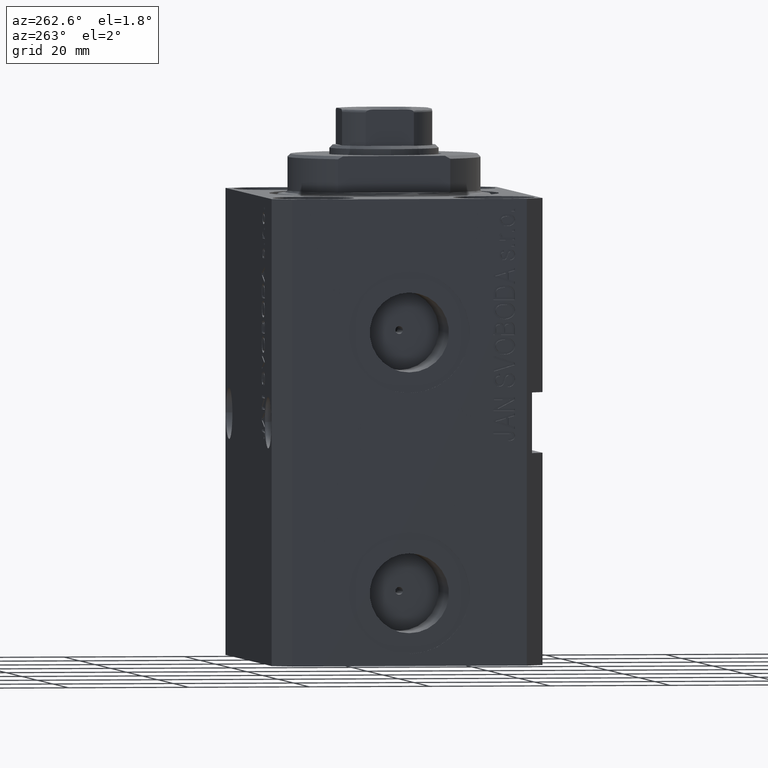
[diagram: clean part render]
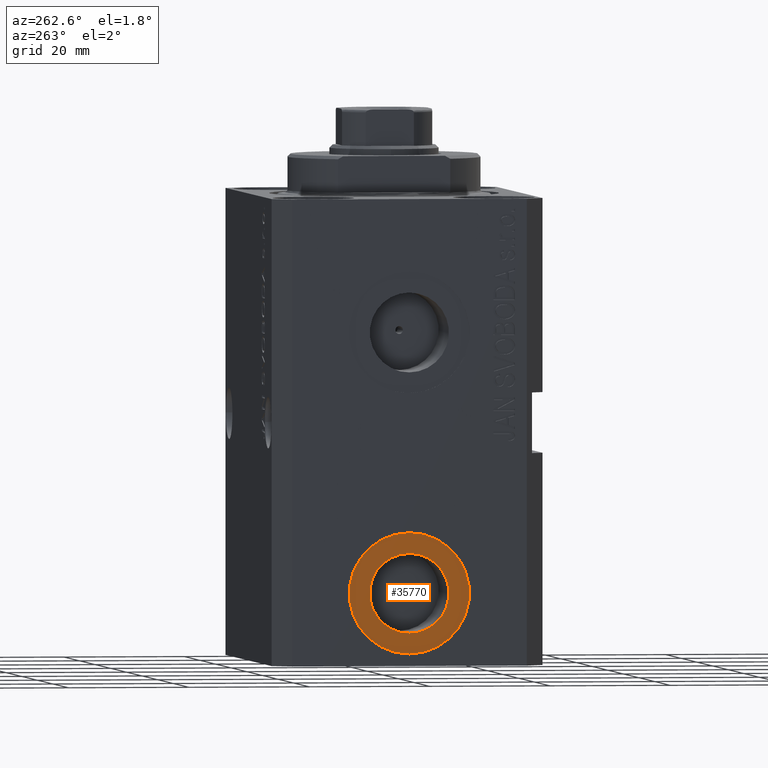
[diagram: same view with one face highlighted and labeled with its STEP entity id]
A machine part, auxiliary view. The second image highlights one B-rep face of the part: STEP entity #35770.
In plain terms, the highlighted planar face has unit normal (-1, 0, 0).
Its self-contained STEP definition (entity closure, byte-faithful):
#1236 = DIRECTION ( 'NONE',  ( -1.000000000000000000, 0.000000000000000000, 0.000000000000000000 ) ) ;
#1796 = EDGE_LOOP ( 'NONE', ( #19447, #22552 ) ) ;
#1813 = CARTESIAN_POINT ( 'NONE',  ( -32.39999999999650271, -6.938893903907228378E-15, -65.00000000000000000 ) ) ;
#1914 = CARTESIAN_POINT ( 'NONE',  ( -32.39999999999650271, -5.714247104759875318E-15, -75.00000000000000000 ) ) ;
#3332 = CARTESIAN_POINT ( 'NONE',  ( -32.39999999999650271, -6.938893903907228378E-15, -65.00000000000000000 ) ) ;
#4174 = DIRECTION ( 'NONE',  ( 0.000000000000000000, 0.000000000000000000, 1.000000000000000000 ) ) ;
#4992 = DIRECTION ( 'NONE',  ( 0.000000000000000000, 0.000000000000000000, 1.000000000000000000 ) ) ;
#5501 = DIRECTION ( 'NONE',  ( 0.000000000000000000, 0.000000000000000000, 1.000000000000000000 ) ) ;
#6747 = CARTESIAN_POINT ( 'NONE',  ( -32.39999999999650271, -6.938893903907228378E-15, -58.42000000000000171 ) ) ;
#7640 = AXIS2_PLACEMENT_3D ( 'NONE', #35777, #35553, #4992 ) ;
#8206 = CARTESIAN_POINT ( 'NONE',  ( -32.39999999999650271, -6.938893903907228378E-15, -65.00000000000000000 ) ) ;
#9490 = ORIENTED_EDGE ( 'NONE', *, *, #40808, .T. ) ;
#9564 = EDGE_LOOP ( 'NONE', ( #29790, #9490 ) ) ;
#10219 = VERTEX_POINT ( 'NONE', #16361 ) ;
#10229 = CARTESIAN_POINT ( 'NONE',  ( -32.39999999999650271, -6.938893903907228378E-15, -65.00000000000000000 ) ) ;
#10291 = EDGE_CURVE ( 'NONE', #44253, #10219, #16394, .T. ) ;
#11451 = CIRCLE ( 'NONE', #36571, 6.580000000000002736 ) ;
#11976 = EDGE_CURVE ( 'NONE', #10219, #44253, #11451, .T. ) ;
#15284 = DIRECTION ( 'NONE',  ( 0.000000000000000000, 0.000000000000000000, 1.000000000000000000 ) ) ;
#15724 = DIRECTION ( 'NONE',  ( -1.000000000000000000, 0.000000000000000000, 0.000000000000000000 ) ) ;
#16361 = CARTESIAN_POINT ( 'NONE',  ( -32.39999999999650271, -6.133076310068269336E-15, -71.57999999999999829 ) ) ;
#16394 = CIRCLE ( 'NONE', #22141, 6.580000000000002736 ) ;
#19447 = ORIENTED_EDGE ( 'NONE', *, *, #10291, .F. ) ;
#20566 = DIRECTION ( 'NONE',  ( -1.000000000000000000, 0.000000000000000000, 0.000000000000000000 ) ) ;
#20614 = DIRECTION ( 'NONE',  ( 0.000000000000000000, 0.000000000000000000, 1.000000000000000000 ) ) ;
#21977 = CIRCLE ( 'NONE', #7640, 9.999999999999994671 ) ;
#22141 = AXIS2_PLACEMENT_3D ( 'NONE', #3332, #1236, #20614 ) ;
#22552 = ORIENTED_EDGE ( 'NONE', *, *, #11976, .F. ) ;
#27041 = AXIS2_PLACEMENT_3D ( 'NONE', #10229, #20566, #4174 ) ;
#27320 = FACE_OUTER_BOUND ( 'NONE', #9564, .T. ) ;
#28143 = VERTEX_POINT ( 'NONE', #1914 ) ;
#29790 = ORIENTED_EDGE ( 'NONE', *, *, #35271, .T. ) ;
#30771 = CARTESIAN_POINT ( 'NONE',  ( -32.39999999999650271, -6.938893903907228378E-15, -55.00000000000000711 ) ) ;
#31374 = CIRCLE ( 'NONE', #39966, 9.999999999999994671 ) ;
#35271 = EDGE_CURVE ( 'NONE', #43036, #28143, #21977, .T. ) ;
#35553 = DIRECTION ( 'NONE',  ( -1.000000000000000000, 0.000000000000000000, 0.000000000000000000 ) ) ;
#35770 = ADVANCED_FACE ( 'NONE', ( #44387, #27320 ), #41022, .T. ) ;
#35777 = CARTESIAN_POINT ( 'NONE',  ( -32.39999999999650271, -6.938893903907228378E-15, -65.00000000000000000 ) ) ;
#36571 = AXIS2_PLACEMENT_3D ( 'NONE', #1813, #15724, #15284 ) ;
#39464 = DIRECTION ( 'NONE',  ( -1.000000000000000000, 0.000000000000000000, 0.000000000000000000 ) ) ;
#39966 = AXIS2_PLACEMENT_3D ( 'NONE', #8206, #39464, #5501 ) ;
#40808 = EDGE_CURVE ( 'NONE', #28143, #43036, #31374, .T. ) ;
#41022 = PLANE ( 'NONE',  #27041 ) ;
#43036 = VERTEX_POINT ( 'NONE', #30771 ) ;
#44253 = VERTEX_POINT ( 'NONE', #6747 ) ;
#44387 = FACE_BOUND ( 'NONE', #1796, .T. ) ;